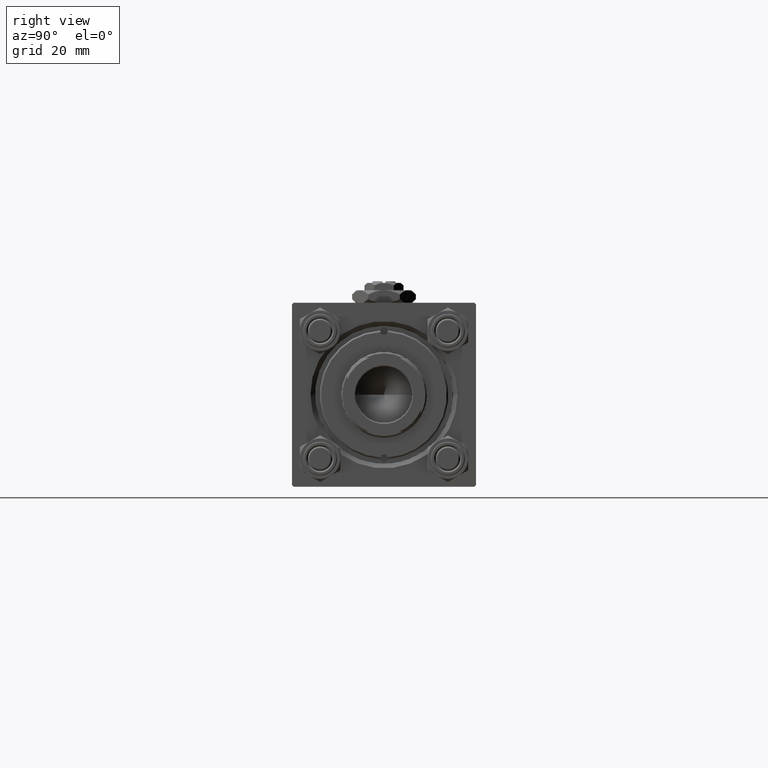
[diagram: clean part render]
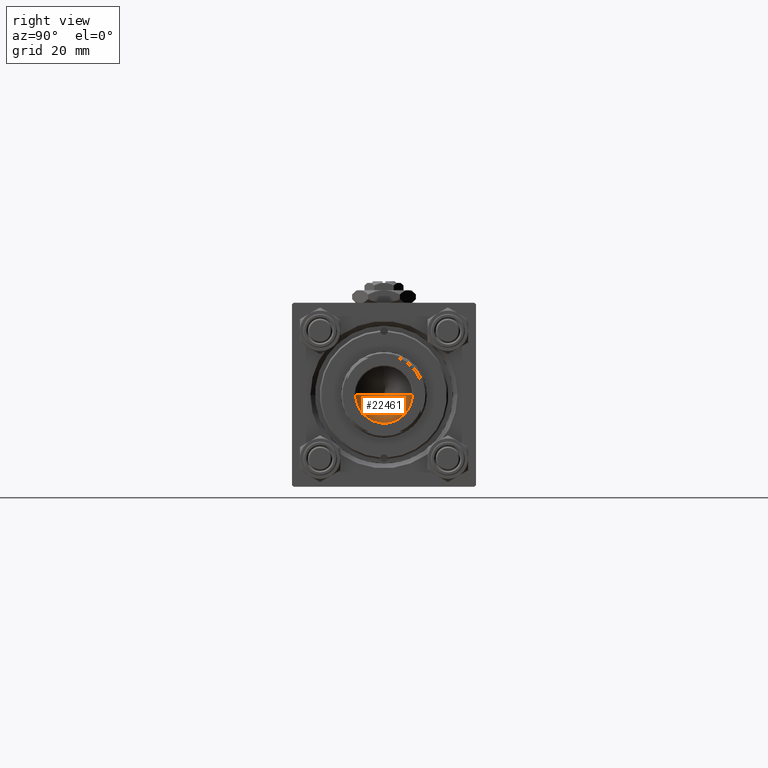
[diagram: same view with one face highlighted and labeled with its STEP entity id]
A machine part, right view. The second image highlights one B-rep face of the part: STEP entity #22461.
In plain terms, the highlighted conical surface has half-angle 59 deg.
Its self-contained STEP definition (entity closure, byte-faithful):
#66 = VECTOR ( 'NONE', #51726, 1000.000000000000000 ) ;
#216 = AXIS2_PLACEMENT_3D ( 'NONE', #10139, #26180, #34584 ) ;
#480 = EDGE_LOOP ( 'NONE', ( #14175, #12030, #46583 ) ) ;
#753 = EDGE_CURVE ( 'NONE', #50624, #13414, #3834, .T. ) ;
#3834 = LINE ( 'NONE', #36197, #66 ) ;
#4064 = DIRECTION ( 'NONE',  ( 0.8571673007021117785, 0.000000000000000000, 0.5150380749100550437 ) ) ;
#5252 = CONICAL_SURFACE ( 'NONE', #34664, 9.249999999999992895, 1.029744258676653423 ) ;
#6631 = CARTESIAN_POINT ( 'NONE',  ( 9.249999999999992895, 0.000000000000000000, 101.0000000000000000 ) ) ;
#10139 = CARTESIAN_POINT ( 'NONE',  ( 0.000000000000000000, 0.000000000000000000, 101.0000000000000000 ) ) ;
#11727 = LINE ( 'NONE', #35919, #27581 ) ;
#12030 = ORIENTED_EDGE ( 'NONE', *, *, #35904, .T. ) ;
#13414 = VERTEX_POINT ( 'NONE', #13733 ) ;
#13733 = CARTESIAN_POINT ( 'NONE',  ( -9.249999999999992895, 1.132798289211300712E-15, 101.0000000000000000 ) ) ;
#14175 = ORIENTED_EDGE ( 'NONE', *, *, #753, .F. ) ;
#17533 = VERTEX_POINT ( 'NONE', #6631 ) ;
#19521 = DIRECTION ( 'NONE',  ( -0.000000000000000000, -0.000000000000000000, 1.000000000000000000 ) ) ;
#22461 = ADVANCED_FACE ( 'NONE', ( #31099 ), #5252, .F. ) ;
#22830 = EDGE_CURVE ( 'NONE', #17533, #13414, #41509, .T. ) ;
#26180 = DIRECTION ( 'NONE',  ( -0.000000000000000000, -0.000000000000000000, 1.000000000000000000 ) ) ;
#27581 = VECTOR ( 'NONE', #4064, 1000.000000000000000 ) ;
#28702 = DIRECTION ( 'NONE',  ( 1.000000000000000000, 0.000000000000000000, 0.000000000000000000 ) ) ;
#31099 = FACE_OUTER_BOUND ( 'NONE', #480, .T. ) ;
#34584 = DIRECTION ( 'NONE',  ( 1.000000000000000000, 0.000000000000000000, 0.000000000000000000 ) ) ;
#34664 = AXIS2_PLACEMENT_3D ( 'NONE', #47137, #19521, #28702 ) ;
#35904 = EDGE_CURVE ( 'NONE', #50624, #17533, #11727, .T. ) ;
#35919 = CARTESIAN_POINT ( 'NONE',  ( 9.249999999999992895, 0.000000000000000000, 101.0000000000000000 ) ) ;
#36197 = CARTESIAN_POINT ( 'NONE',  ( -9.249999999999992895, 1.132798289211300712E-15, 101.0000000000000000 ) ) ;
#41509 = CIRCLE ( 'NONE', #216, 9.249999999999992895 ) ;
#46583 = ORIENTED_EDGE ( 'NONE', *, *, #22830, .T. ) ;
#47137 = CARTESIAN_POINT ( 'NONE',  ( 0.000000000000000000, 0.000000000000000000, 101.0000000000000000 ) ) ;
#50624 = VERTEX_POINT ( 'NONE', #52039 ) ;
#51726 = DIRECTION ( 'NONE',  ( -0.8571673007021117785, 1.049727191138617956E-16, 0.5150380749100550437 ) ) ;
#52039 = CARTESIAN_POINT ( 'NONE',  ( -9.769621978240258809E-15, 0.000000000000000000, 95.44203927399506426 ) ) ;